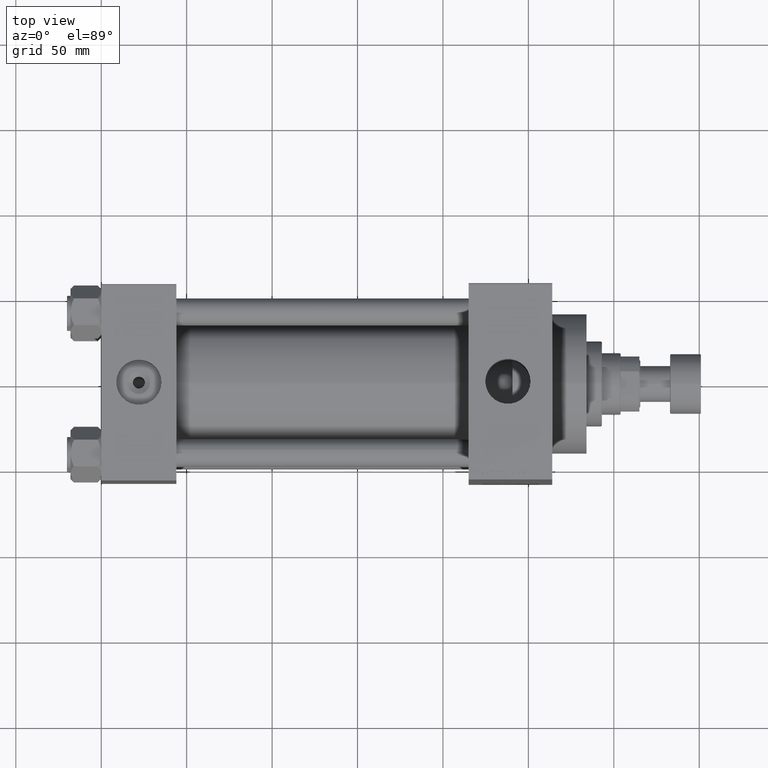
[diagram: clean part render]
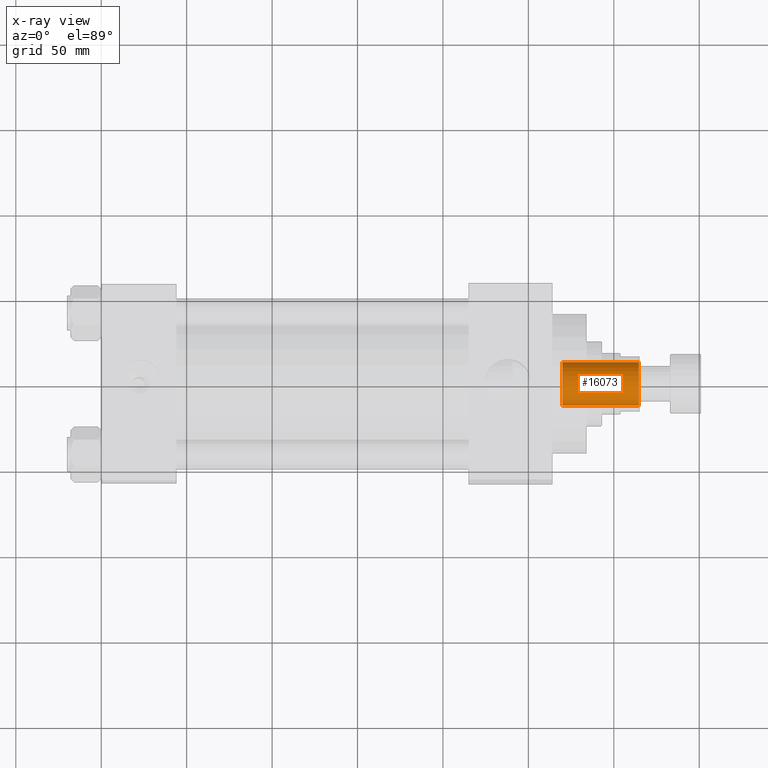
[diagram: x-ray — body ghosted, one internal face saturated and labeled with its STEP entity id]
A machine part, top view, then the same camera in x-ray: the body is ghosted and one INTERNAL B-rep face — a face not visible from any outside direction — is saturated and labeled: STEP entity #16073.
In plain terms, the highlighted cylindrical surface (edge-blend (fillet) strip) has radius 12.75 mm, axis along (1, 0, 0).
Its self-contained STEP definition (entity closure, byte-faithful):
#1511 = CARTESIAN_POINT ( 'NONE',  ( -12.74999999999998934, 1.561424668912873928E-15, 226.0000000000000284 ) ) ;
#4854 = CARTESIAN_POINT ( 'NONE',  ( -12.74999999999999112, 1.561424668912874125E-15, 270.7000000000000455 ) ) ;
#5329 = DIRECTION ( 'NONE',  ( 1.000000000000000000, 0.000000000000000000, 0.000000000000000000 ) ) ;
#5933 = CARTESIAN_POINT ( 'NONE',  ( 0.000000000000000000, 0.000000000000000000, 226.0000000000000284 ) ) ;
#6037 = CARTESIAN_POINT ( 'NONE',  ( 12.74999999999998934, 0.000000000000000000, 226.0000000000000284 ) ) ;
#7081 = VERTEX_POINT ( 'NONE', #1511 ) ;
#9546 = CIRCLE ( 'NONE', #9581, 12.74999999999999112 ) ;
#9581 = AXIS2_PLACEMENT_3D ( 'NONE', #45336, #26799, #11871 ) ;
#11497 = VERTEX_POINT ( 'NONE', #4854 ) ;
#11691 = CARTESIAN_POINT ( 'NONE',  ( 12.74999999999999112, 0.000000000000000000, 270.7000000000000455 ) ) ;
#11871 = DIRECTION ( 'NONE',  ( 1.000000000000000000, 0.000000000000000000, 0.000000000000000000 ) ) ;
#13985 = VECTOR ( 'NONE', #30003, 1000.000000000000000 ) ;
#15765 = VECTOR ( 'NONE', #30366, 1000.000000000000000 ) ;
#16073 = ADVANCED_FACE ( 'NONE', ( #34178 ), #31273, .F. ) ;
#16583 = CARTESIAN_POINT ( 'NONE',  ( 0.000000000000000000, 0.000000000000000000, 271.0000000000000000 ) ) ;
#18597 = AXIS2_PLACEMENT_3D ( 'NONE', #5933, #20852, #46968 ) ;
#18836 = EDGE_LOOP ( 'NONE', ( #28002, #41892, #26943, #22232 ) ) ;
#20852 = DIRECTION ( 'NONE',  ( -0.000000000000000000, -0.000000000000000000, 1.000000000000000000 ) ) ;
#21095 = VERTEX_POINT ( 'NONE', #11691 ) ;
#22232 = ORIENTED_EDGE ( 'NONE', *, *, #32605, .F. ) ;
#22767 = CARTESIAN_POINT ( 'NONE',  ( -12.74999999999999112, 1.561424668912874125E-15, 271.0000000000000000 ) ) ;
#26799 = DIRECTION ( 'NONE',  ( 0.000000000000000000, 0.000000000000000000, 1.000000000000000000 ) ) ;
#26940 = LINE ( 'NONE', #22767, #15765 ) ;
#26943 = ORIENTED_EDGE ( 'NONE', *, *, #42045, .T. ) ;
#28002 = ORIENTED_EDGE ( 'NONE', *, *, #32025, .F. ) ;
#29763 = LINE ( 'NONE', #33642, #13985 ) ;
#30003 = DIRECTION ( 'NONE',  ( -0.000000000000000000, -0.000000000000000000, 1.000000000000000000 ) ) ;
#30366 = DIRECTION ( 'NONE',  ( -0.000000000000000000, -0.000000000000000000, 1.000000000000000000 ) ) ;
#31273 = CYLINDRICAL_SURFACE ( 'NONE', #47402, 12.74999999999999112 ) ;
#32025 = EDGE_CURVE ( 'NONE', #7081, #41809, #45127, .T. ) ;
#32605 = EDGE_CURVE ( 'NONE', #41809, #21095, #29763, .T. ) ;
#33642 = CARTESIAN_POINT ( 'NONE',  ( 12.74999999999999112, 0.000000000000000000, 271.0000000000000000 ) ) ;
#34178 = FACE_OUTER_BOUND ( 'NONE', #18836, .T. ) ;
#41809 = VERTEX_POINT ( 'NONE', #6037 ) ;
#41892 = ORIENTED_EDGE ( 'NONE', *, *, #43560, .T. ) ;
#42045 = EDGE_CURVE ( 'NONE', #11497, #21095, #9546, .T. ) ;
#43560 = EDGE_CURVE ( 'NONE', #7081, #11497, #26940, .T. ) ;
#45127 = CIRCLE ( 'NONE', #18597, 12.74999999999998934 ) ;
#45336 = CARTESIAN_POINT ( 'NONE',  ( 0.000000000000000000, 0.000000000000000000, 270.7000000000000455 ) ) ;
#45883 = DIRECTION ( 'NONE',  ( -0.000000000000000000, -0.000000000000000000, 1.000000000000000000 ) ) ;
#46968 = DIRECTION ( 'NONE',  ( 1.000000000000000000, 0.000000000000000000, 0.000000000000000000 ) ) ;
#47402 = AXIS2_PLACEMENT_3D ( 'NONE', #16583, #45883, #5329 ) ;